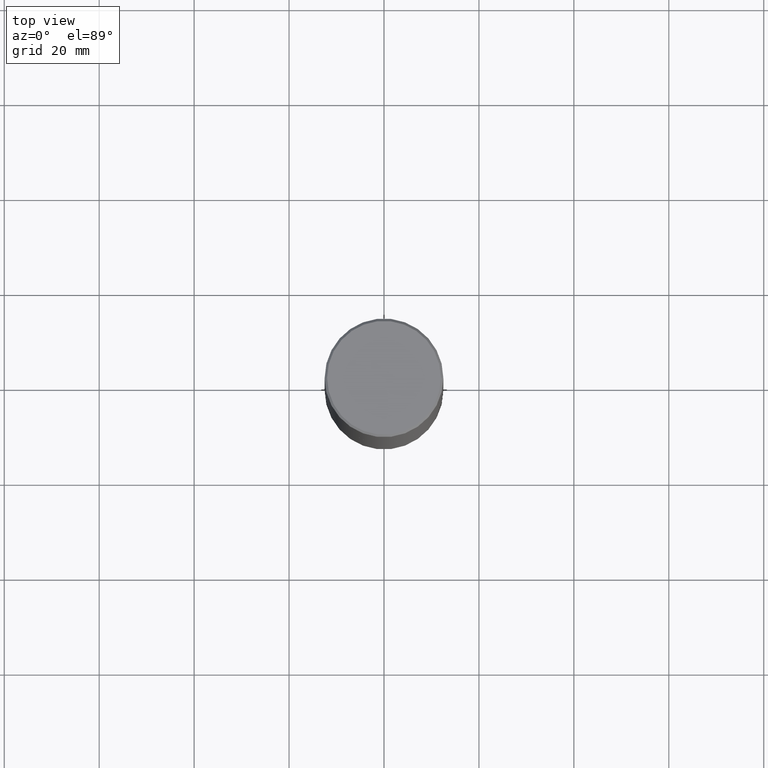
[diagram: clean part render]
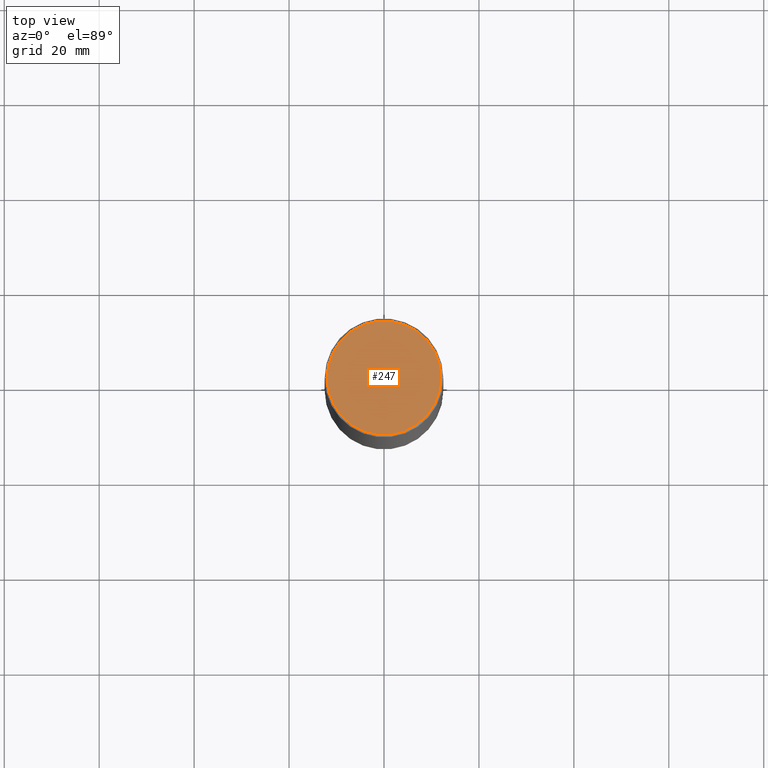
[diagram: same view with one face highlighted and labeled with its STEP entity id]
A machine part, top view. The second image highlights one B-rep face of the part: STEP entity #247.
In plain terms, the highlighted planar face has unit normal (0, -0, -1).
Its self-contained STEP definition (entity closure, byte-faithful):
#32 = DIRECTION ( 'NONE',  ( 2.438088387897960049E-29, -3.491481338843145188E-15, -1.000000000000000000 ) ) ;
#41 = CARTESIAN_POINT ( 'NONE',  ( 3.297005828269569180E-15, 0.4721499999999997921, -1.507642001961476820E-15 ) ) ;
#58 = ORIENTED_EDGE ( 'NONE', *, *, #270, .T. ) ;
#65 = FACE_OUTER_BOUND ( 'NONE', #353, .T. ) ;
#67 = DIRECTION ( 'NONE',  ( -2.445468806185136597E-29, 3.491481338843145583E-15, 1.000000000000000000 ) ) ;
#124 = DIRECTION ( 'NONE',  ( -1.000000000000000000, 6.982962677686265922E-15, -4.876176775795935793E-29 ) ) ;
#219 = DIRECTION ( 'NONE',  ( 1.000000000000000000, -6.982962677686265922E-15, 4.882029041999364017E-29 ) ) ;
#237 = CARTESIAN_POINT ( 'NONE',  ( -0.4721499999999997921, 3.331920641658001618E-15, 2.817218243466039531E-16 ) ) ;
#247 = ADVANCED_FACE ( 'NONE', ( #65 ), #411, .F. ) ;
#261 = CARTESIAN_POINT ( 'NONE',  ( -6.889419334612450925E-45, 9.836264924510951028E-31, 2.817218243466271259E-16 ) ) ;
#264 = CARTESIAN_POINT ( 'NONE',  ( 0.4721499999999997921, -3.342703923013974974E-15, 2.817218243466503973E-16 ) ) ;
#270 = EDGE_CURVE ( 'NONE', #412, #274, #282, .T. ) ;
#274 = VERTEX_POINT ( 'NONE', #264 ) ;
#282 = CIRCLE ( 'NONE', #304, 0.4721499999999997921 ) ;
#304 = AXIS2_PLACEMENT_3D ( 'NONE', #382, #67, #321 ) ;
#321 = DIRECTION ( 'NONE',  ( 1.000000000000000000, -6.982962677686265922E-15, 4.882029041999364017E-29 ) ) ;
#324 = AXIS2_PLACEMENT_3D ( 'NONE', #41, #32, #124 ) ;
#325 = CIRCLE ( 'NONE', #388, 0.4721499999999997921 ) ;
#331 = ORIENTED_EDGE ( 'NONE', *, *, #354, .T. ) ;
#353 = EDGE_LOOP ( 'NONE', ( #58, #331 ) ) ;
#354 = EDGE_CURVE ( 'NONE', #274, #412, #325, .T. ) ;
#382 = CARTESIAN_POINT ( 'NONE',  ( -6.889419334612450925E-45, 9.836264924510951028E-31, 2.817218243466271259E-16 ) ) ;
#386 = DIRECTION ( 'NONE',  ( -2.445468806185136597E-29, 3.491481338843145583E-15, 1.000000000000000000 ) ) ;
#388 = AXIS2_PLACEMENT_3D ( 'NONE', #261, #386, #219 ) ;
#411 = PLANE ( 'NONE',  #324 ) ;
#412 = VERTEX_POINT ( 'NONE', #237 ) ;